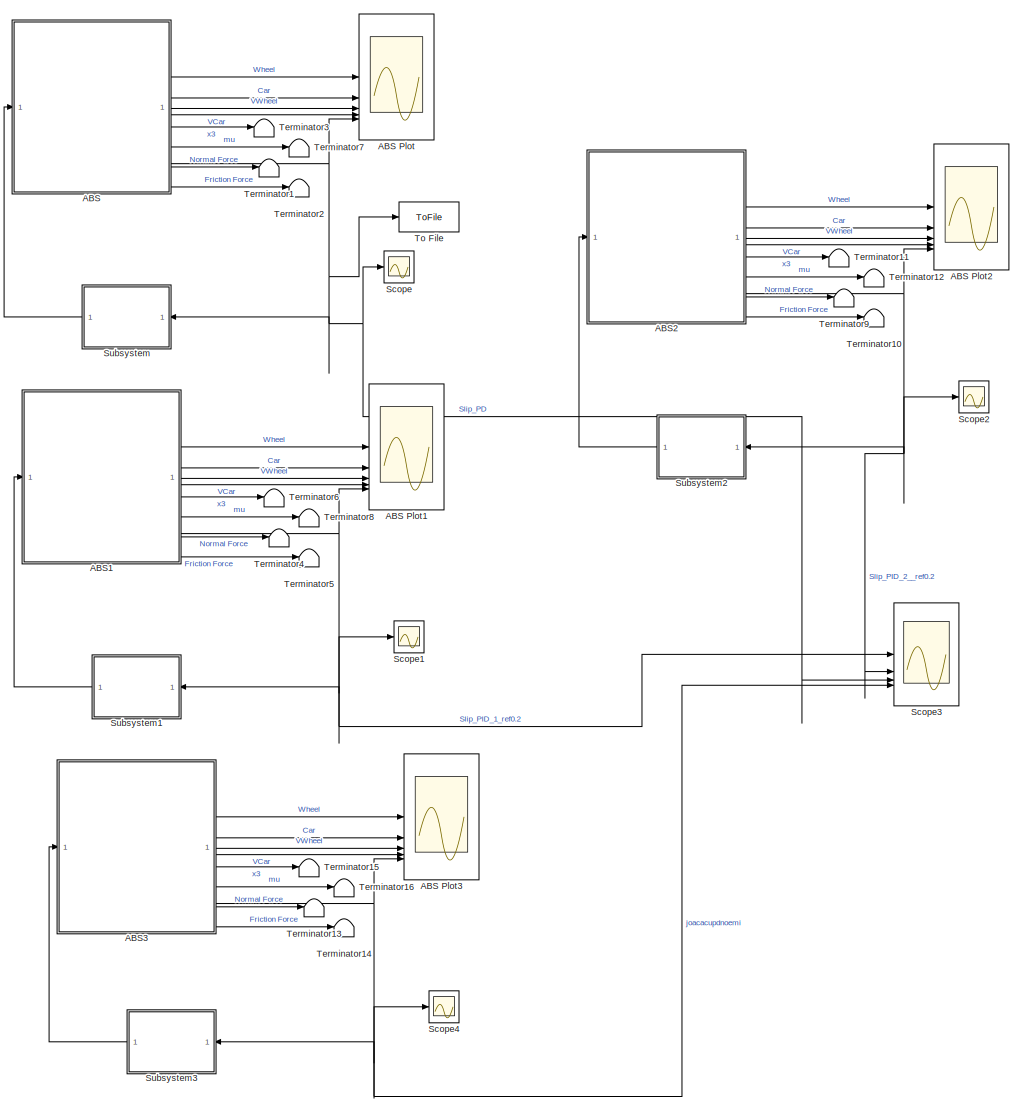
[diagram: root canvas - part 1/1, most of the canvas]
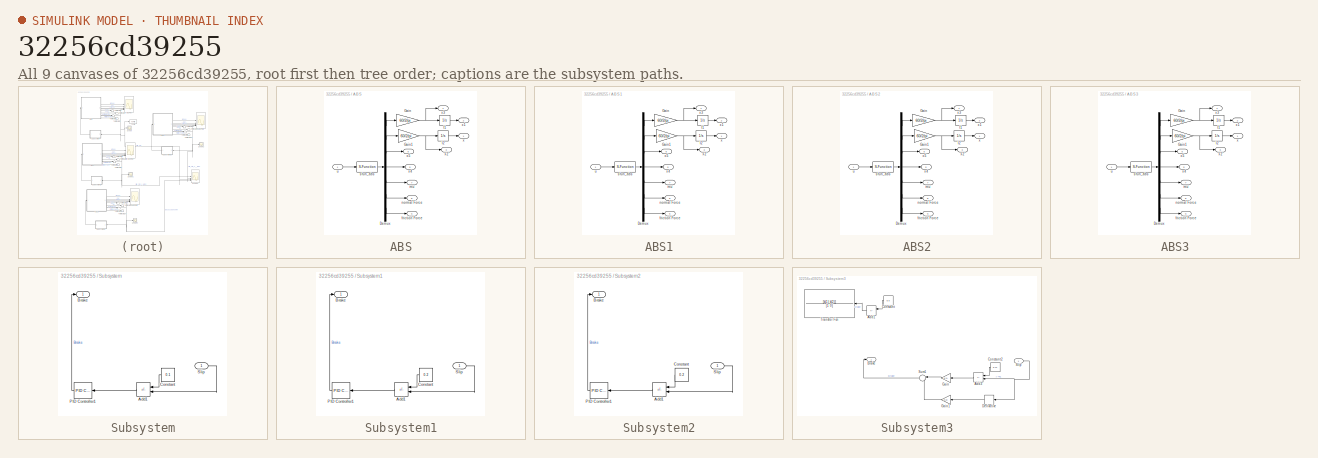
[diagram: thumbnail index - all 9 canvases of the model, root first then tree order]
MODEL slx_32256cd39255
KIND model
CONFIG AbsTol = auto
CONFIG EnableMultiTasking = off
CONFIG FixedStep = auto
CONFIG MaxStep = auto
CONFIG MinStep = auto
CONFIG RelTol = 1e-3
CONFIG SampleTimeConstraint = Unconstrained
CONFIG SolverName = VariableStepAuto
CONFIG StartTime = 0.0
CONFIG StopTime = 10
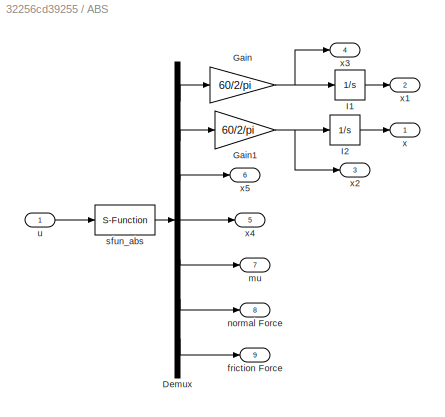
BLOCK [SubSystem] ABS
BLOCK [Scope] ABS Plot
  Floating = off
  NumInputPorts = 6
  ScopeSpecificationString = Simulink.scopes.TimeScopeBlockCfg('CurrentConfiguration', extmgr.ConfigurationSet(extmgr.Configuration('Core','General UI',true),extmgr.Configuration('Core','Source UI',true),extmgr.Configuration('Sources','WiredSimulink',true,'DataLogging',true,'DataLoggingVariableName','ABSHistory','DataLoggingSaveFormat','StructureWithTime','DataLoggingMaxPoints','6000','DataLoggingLimitDataPoints',true,'DataLo...<+3809ch>
BLOCK [Scope] ABS Plot1
  Floating = off
  NumInputPorts = 6
  ScopeSpecificationString = Simulink.scopes.TimeScopeBlockCfg('CurrentConfiguration', extmgr.ConfigurationSet(extmgr.Configuration('Core','General UI',true),extmgr.Configuration('Core','Source UI',true),extmgr.Configuration('Sources','WiredSimulink',true,'DataLogging',true,'DataLoggingVariableName','ScopeData1','DataLoggingSaveFormat','StructureWithTime','DataLoggingMaxPoints','6000','DataLoggingLimitDataPoints',true,'DataLo...<+3849ch>
BLOCK [Scope] ABS Plot2
  Floating = off
  NumInputPorts = 6
  ScopeSpecificationString = Simulink.scopes.TimeScopeBlockCfg('CurrentConfiguration', extmgr.ConfigurationSet(extmgr.Configuration('Core','General UI',true),extmgr.Configuration('Core','Source UI',true),extmgr.Configuration('Sources','WiredSimulink',true,'DataLogging',true,'DataLoggingVariableName','ScopeData3','DataLoggingSaveFormat','StructureWithTime','DataLoggingMaxPoints','6000','DataLoggingLimitDataPoints',true,'DataLo...<+3850ch>
BLOCK [Scope] ABS Plot3
  Floating = off
  NumInputPorts = 6
  ScopeSpecificationString = Simulink.scopes.TimeScopeBlockCfg('CurrentConfiguration', extmgr.ConfigurationSet(extmgr.Configuration('Core','General UI',true),extmgr.Configuration('Core','Source UI',true),extmgr.Configuration('Sources','WiredSimulink',true,'DataLogging',true,'DataLoggingVariableName','ScopeData6','DataLoggingSaveFormat','StructureWithTime','DataLoggingMaxPoints','6000','DataLoggingLimitDataPoints',true,'DataLo...<+3848ch>
BLOCK [Demux] ABS/Demux
  DisplayOption = none
  Outputs = 7
BLOCK [Gain] ABS/Gain
  Gain = 60/2/pi
  OutDataTypeStr = Inherit: Same as input
  ParamDataTypeStr = Inherit: Same as input
  SaturateOnIntegerOverflow = on
BLOCK [Gain] ABS/Gain1
  Gain = 60/2/pi
  OutDataTypeStr = Inherit: Same as input
  ParamDataTypeStr = Inherit: Same as input
  SaturateOnIntegerOverflow = on
BLOCK [Integrator] ABS/I1
BLOCK [Integrator] ABS/I2
BLOCK [Outport] ABS/friction Force
  Port = 9
BLOCK [Outport] ABS/mu
  Port = 7
BLOCK [Outport] ABS/normal Force
  Port = 8
BLOCK [S-Function] ABS/sfun_abs
  EnableBusSupport = off
  FunctionName = sabs
  Parameters = r1,r2,J1,J2,d1,d2,M10,M20,Mg,w,p,a,L,phi,u0,b1,b2,tau,xini
  SFcnIsStateOwnerBlock = off
  SFunctionDeploymentMode = off
BLOCK [Inport] ABS/u
BLOCK [Outport] ABS/x
BLOCK [Outport] ABS/x1
  Port = 2
BLOCK [Outport] ABS/x2
  Port = 3
BLOCK [Outport] ABS/x3
  Port = 4
BLOCK [Outport] ABS/x4
  Port = 5
BLOCK [Outport] ABS/x5
  Port = 6
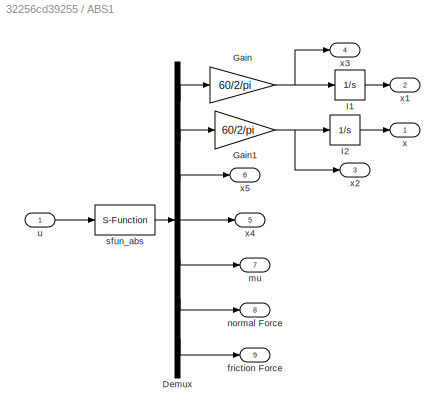
BLOCK [SubSystem] ABS1
BLOCK [Demux] ABS1/Demux
  DisplayOption = none
  Outputs = 7
BLOCK [Gain] ABS1/Gain
  Gain = 60/2/pi
  OutDataTypeStr = Inherit: Same as input
  ParamDataTypeStr = Inherit: Same as input
  SaturateOnIntegerOverflow = on
BLOCK [Gain] ABS1/Gain1
  Gain = 60/2/pi
  OutDataTypeStr = Inherit: Same as input
  ParamDataTypeStr = Inherit: Same as input
  SaturateOnIntegerOverflow = on
BLOCK [Integrator] ABS1/I1
BLOCK [Integrator] ABS1/I2
BLOCK [Outport] ABS1/friction Force
  Port = 9
BLOCK [Outport] ABS1/mu
  Port = 7
BLOCK [Outport] ABS1/normal Force
  Port = 8
BLOCK [S-Function] ABS1/sfun_abs
  EnableBusSupport = off
  FunctionName = sabs
  Parameters = r1,r2,J1,J2,d1,d2,M10,M20,Mg,w,p,a,L,phi,u0,b1,b2,tau,xini
  SFcnIsStateOwnerBlock = off
  SFunctionDeploymentMode = off
BLOCK [Inport] ABS1/u
BLOCK [Outport] ABS1/x
BLOCK [Outport] ABS1/x1
  Port = 2
BLOCK [Outport] ABS1/x2
  Port = 3
BLOCK [Outport] ABS1/x3
  Port = 4
BLOCK [Outport] ABS1/x4
  Port = 5
BLOCK [Outport] ABS1/x5
  Port = 6
BLOCK [SubSystem] ABS2
BLOCK [Demux] ABS2/Demux
  DisplayOption = none
  Outputs = 7
BLOCK [Gain] ABS2/Gain
  Gain = 60/2/pi
  OutDataTypeStr = Inherit: Same as input
  ParamDataTypeStr = Inherit: Same as input
  SaturateOnIntegerOverflow = on
BLOCK [Gain] ABS2/Gain1
  Gain = 60/2/pi
  OutDataTypeStr = Inherit: Same as input
  ParamDataTypeStr = Inherit: Same as input
  SaturateOnIntegerOverflow = on
BLOCK [Integrator] ABS2/I1
BLOCK [Integrator] ABS2/I2
BLOCK [Outport] ABS2/friction Force
  Port = 9
BLOCK [Outport] ABS2/mu
  Port = 7
BLOCK [Outport] ABS2/normal Force
  Port = 8
BLOCK [S-Function] ABS2/sfun_abs
  EnableBusSupport = off
  FunctionName = sabs
  Parameters = r1,r2,J1,J2,d1,d2,M10,M20,Mg,w,p,a,L,phi,u0,b1,b2,tau,xini
  SFcnIsStateOwnerBlock = off
  SFunctionDeploymentMode = off
BLOCK [Inport] ABS2/u
BLOCK [Outport] ABS2/x
BLOCK [Outport] ABS2/x1
  Port = 2
BLOCK [Outport] ABS2/x2
  Port = 3
BLOCK [Outport] ABS2/x3
  Port = 4
BLOCK [Outport] ABS2/x4
  Port = 5
BLOCK [Outport] ABS2/x5
  Port = 6
BLOCK [SubSystem] ABS3
BLOCK [Demux] ABS3/Demux
  DisplayOption = none
  Outputs = 7
BLOCK [Gain] ABS3/Gain
  Gain = 60/2/pi
  OutDataTypeStr = Inherit: Same as input
  ParamDataTypeStr = Inherit: Same as input
  SaturateOnIntegerOverflow = on
BLOCK [Gain] ABS3/Gain1
  Gain = 60/2/pi
  OutDataTypeStr = Inherit: Same as input
  ParamDataTypeStr = Inherit: Same as input
  SaturateOnIntegerOverflow = on
BLOCK [Integrator] ABS3/I1
BLOCK [Integrator] ABS3/I2
BLOCK [Outport] ABS3/friction Force
  Port = 9
BLOCK [Outport] ABS3/mu
  Port = 7
BLOCK [Outport] ABS3/normal Force
  Port = 8
BLOCK [S-Function] ABS3/sfun_abs
  EnableBusSupport = off
  FunctionName = sabs
  Parameters = r1,r2,J1,J2,d1,d2,M10,M20,Mg,w,p,a,L,phi,u0,b1,b2,tau,xini
  SFcnIsStateOwnerBlock = off
  SFunctionDeploymentMode = off
BLOCK [Inport] ABS3/u
BLOCK [Outport] ABS3/x
BLOCK [Outport] ABS3/x1
  Port = 2
BLOCK [Outport] ABS3/x2
  Port = 3
BLOCK [Outport] ABS3/x3
  Port = 4
BLOCK [Outport] ABS3/x4
  Port = 5
BLOCK [Outport] ABS3/x5
  Port = 6
BLOCK [Scope] Scope
  Floating = off
  NumInputPorts = 1
  ScopeSpecificationString = Simulink.scopes.TimeScopeBlockCfg('CurrentConfiguration', extmgr.ConfigurationSet(extmgr.Configuration('Core','General UI',true),extmgr.Configuration('Core','Source UI',true),extmgr.Configuration('Sources','WiredSimulink',true),extmgr.Configuration('Visuals','Time Domain',true,'SerializedDisplays',{struct('MinYLimReal','-0.12455','MaxYLimReal','1.12103','YLabelReal','','MinYLimMag','0.00000','MaxY...<+1407ch>
BLOCK [Scope] Scope1
  Floating = off
  NumInputPorts = 1
  ScopeSpecificationString = Simulink.scopes.TimeScopeBlockCfg('CurrentConfiguration', extmgr.ConfigurationSet(extmgr.Configuration('Core','General UI',true),extmgr.Configuration('Core','Source UI',true),extmgr.Configuration('Sources','WiredSimulink',true,'DataLoggingVariableName','ScopeData2'),extmgr.Configuration('Visuals','Time Domain',true,'SerializedDisplays',{struct('MinYLimReal','-0.12455','MaxYLimReal','1.12103','YLab...<+1456ch>
BLOCK [Scope] Scope2
  Floating = off
  NumInputPorts = 1
  ScopeSpecificationString = Simulink.scopes.TimeScopeBlockCfg('CurrentConfiguration', extmgr.ConfigurationSet(extmgr.Configuration('Core','General UI',true),extmgr.Configuration('Core','Source UI',true),extmgr.Configuration('Sources','WiredSimulink',true,'DataLoggingVariableName','ScopeData4'),extmgr.Configuration('Visuals','Time Domain',true,'SerializedDisplays',{struct('MinYLimReal','-0.12455','MaxYLimReal','1.12103','YLab...<+1443ch>
BLOCK [Scope] Scope3
  Floating = off
  NumInputPorts = 4
  ScopeSpecificationString = Simulink.scopes.TimeScopeBlockCfg('CurrentConfiguration', extmgr.ConfigurationSet(extmgr.Configuration('Core','General UI',true),extmgr.Configuration('Core','Source UI',true),extmgr.Configuration('Sources','WiredSimulink',true,'DataLoggingVariableName','ScopeData5'),extmgr.Configuration('Visuals','Time Domain',true,'SerializedDisplays',{struct('MinYLimReal','-0.125','MaxYLimReal','1.125','YLabelRe...<+1555ch>
BLOCK [Scope] Scope4
  Floating = off
  NumInputPorts = 1
  ScopeSpecificationString = Simulink.scopes.TimeScopeBlockCfg('CurrentConfiguration', extmgr.ConfigurationSet(extmgr.Configuration('Core','General UI',true),extmgr.Configuration('Core','Source UI',true),extmgr.Configuration('Sources','WiredSimulink',true,'DataLoggingVariableName','ScopeData7'),extmgr.Configuration('Visuals','Time Domain',true,'SerializedDisplays',{struct('MinYLimReal','-0.12455','MaxYLimReal','1.12103','YLab...<+1453ch>
BLOCK [SubSystem] Subsystem
  NameLocation = top
BLOCK [Sum] Subsystem/Add1
  IconShape = rectangular
  Inputs = +-
  NameLocation = top
BLOCK [Outport] Subsystem/Brake
BLOCK [Constant] Subsystem/Constant
  NameLocation = top
  Value = 0.1
BLOCK [Reference] Subsystem/PID Controller1  REF=slpidlib/PID Controller
  LibrarySourceBlock = simulink/Continuous/PID Controller
  NameLocation = top
  SourceBlock = slpidlib/PID Controller
  SourceType = PID 1dof
BLOCK [Inport] Subsystem/Slip
BLOCK [SubSystem] Subsystem1
  NameLocation = top
BLOCK [Sum] Subsystem1/Add1
  IconShape = rectangular
  Inputs = +-
  NameLocation = top
BLOCK [Outport] Subsystem1/Brake
BLOCK [Constant] Subsystem1/Constant
  NameLocation = top
  Value = 0.2
BLOCK [Reference] Subsystem1/PID Controller1  REF=slpidlib/PID Controller
  LibrarySourceBlock = simulink/Continuous/PID Controller
  NameLocation = top
  SourceBlock = slpidlib/PID Controller
  SourceType = PID 1dof
BLOCK [Inport] Subsystem1/Slip
BLOCK [SubSystem] Subsystem2
  NameLocation = top
BLOCK [Sum] Subsystem2/Add1
  IconShape = rectangular
  Inputs = +-
  NameLocation = top
BLOCK [Outport] Subsystem2/Brake
BLOCK [Constant] Subsystem2/Constant
  NameLocation = top
  Value = 0.2
BLOCK [Reference] Subsystem2/PID Controller1  REF=slpidlib/PID Controller
  LibrarySourceBlock = simulink/Continuous/PID Controller
  NameLocation = top
  SourceBlock = slpidlib/PID Controller
  SourceType = PID 1dof
BLOCK [Inport] Subsystem2/Slip
BLOCK [SubSystem] Subsystem3
  NameLocation = top
BLOCK [Sum] Subsystem3/Add1
  IconShape = rectangular
  Inputs = +-
  NameLocation = top
BLOCK [Sum] Subsystem3/Add3
  IconShape = rectangular
  Inputs = +-
  NameLocation = top
BLOCK [Outport] Subsystem3/Brake
BLOCK [Constant] Subsystem3/Constant
  NameLocation = top
  Value = 0.5
BLOCK [Constant] Subsystem3/Constant2
  NameLocation = top
  Value = 0.11
BLOCK [Derivative] Subsystem3/Derivative
  NameLocation = top
BLOCK [Gain] Subsystem3/Gain
  Gain = k(1)
  NameLocation = top
BLOCK [Gain] Subsystem3/Gain1
  Gain = k(2)
  NameLocation = top
BLOCK [Inport] Subsystem3/Slip
BLOCK [Sum] Subsystem3/Sum1
  Inputs = |+-
  NameLocation = top
BLOCK [TransferFcn] Subsystem3/Transfer Fcn
  Denominator = [1 0]
  NameLocation = top
  Numerator = [k(1) k(2)]
BLOCK [Terminator] Terminator1
BLOCK [Terminator] Terminator10
BLOCK [Terminator] Terminator11
BLOCK [Terminator] Terminator12
BLOCK [Terminator] Terminator13
BLOCK [Terminator] Terminator14
BLOCK [Terminator] Terminator15
BLOCK [Terminator] Terminator16
BLOCK [Terminator] Terminator2
BLOCK [Terminator] Terminator3
BLOCK [Terminator] Terminator4
BLOCK [Terminator] Terminator5
BLOCK [Terminator] Terminator6
BLOCK [Terminator] Terminator7
BLOCK [Terminator] Terminator8
BLOCK [Terminator] Terminator9
BLOCK [ToFile] To File
  Filename = slipdata.mat
LINE ABS/Demux:1 -> ABS/Gain:1
LINE ABS/Demux:2 -> ABS/Gain1:1
LINE ABS/Demux:3 -> ABS/x5:1
LINE ABS/Demux:4 -> ABS/x4:1
LINE ABS/Demux:5 -> ABS/mu:1
LINE ABS/Demux:6 -> ABS/normal Force:1
LINE ABS/Demux:7 -> ABS/friction Force:1
NET ABS/Gain1:1 -> ABS/I2:1, ABS/x2:1
NET ABS/Gain:1 -> ABS/I1:1, ABS/x3:1
LINE ABS/I1:1 -> ABS/x1:1
LINE ABS/I2:1 -> ABS/x:1
LINE ABS/sfun_abs:1 -> ABS/Demux:1
LINE ABS/u:1 -> ABS/sfun_abs:1
LINE ABS1/Demux:1 -> ABS1/Gain:1
LINE ABS1/Demux:2 -> ABS1/Gain1:1
LINE ABS1/Demux:3 -> ABS1/x5:1
LINE ABS1/Demux:4 -> ABS1/x4:1
LINE ABS1/Demux:5 -> ABS1/mu:1
LINE ABS1/Demux:6 -> ABS1/normal Force:1
LINE ABS1/Demux:7 -> ABS1/friction Force:1
NET ABS1/Gain1:1 -> ABS1/I2:1, ABS1/x2:1
NET ABS1/Gain:1 -> ABS1/I1:1, ABS1/x3:1
LINE ABS1/I1:1 -> ABS1/x1:1
LINE ABS1/I2:1 -> ABS1/x:1
LINE ABS1/sfun_abs:1 -> ABS1/Demux:1
LINE ABS1/u:1 -> ABS1/sfun_abs:1
LINE ABS1:1 -> ABS Plot1:1
LINE ABS1:2 -> ABS Plot1:2
LINE ABS1:3 -> ABS Plot1:3
LINE ABS1:4 -> ABS Plot1:4
NET ABS1:5 -> ABS Plot1:5, Scope1:1, Scope3:1, Subsystem1:1
LINE ABS1:6 -> Terminator6:1
LINE ABS1:7 -> Terminator8:1
LINE ABS1:8 -> Terminator4:1
LINE ABS1:9 -> Terminator5:1
LINE ABS2/Demux:1 -> ABS2/Gain:1
LINE ABS2/Demux:2 -> ABS2/Gain1:1
LINE ABS2/Demux:3 -> ABS2/x5:1
LINE ABS2/Demux:4 -> ABS2/x4:1
LINE ABS2/Demux:5 -> ABS2/mu:1
LINE ABS2/Demux:6 -> ABS2/normal Force:1
LINE ABS2/Demux:7 -> ABS2/friction Force:1
NET ABS2/Gain1:1 -> ABS2/I2:1, ABS2/x2:1
NET ABS2/Gain:1 -> ABS2/I1:1, ABS2/x3:1
LINE ABS2/I1:1 -> ABS2/x1:1
LINE ABS2/I2:1 -> ABS2/x:1
LINE ABS2/sfun_abs:1 -> ABS2/Demux:1
LINE ABS2/u:1 -> ABS2/sfun_abs:1
LINE ABS2:1 -> ABS Plot2:1
LINE ABS2:2 -> ABS Plot2:2
LINE ABS2:3 -> ABS Plot2:3
LINE ABS2:4 -> ABS Plot2:4
NET ABS2:5 -> ABS Plot2:5, Scope2:1, Scope3:2, Subsystem2:1
LINE ABS2:6 -> Terminator11:1
LINE ABS2:7 -> Terminator12:1
LINE ABS2:8 -> Terminator9:1
LINE ABS2:9 -> Terminator10:1
LINE ABS3/Demux:1 -> ABS3/Gain:1
LINE ABS3/Demux:2 -> ABS3/Gain1:1
LINE ABS3/Demux:3 -> ABS3/x5:1
LINE ABS3/Demux:4 -> ABS3/x4:1
LINE ABS3/Demux:5 -> ABS3/mu:1
LINE ABS3/Demux:6 -> ABS3/normal Force:1
LINE ABS3/Demux:7 -> ABS3/friction Force:1
NET ABS3/Gain1:1 -> ABS3/I2:1, ABS3/x2:1
NET ABS3/Gain:1 -> ABS3/I1:1, ABS3/x3:1
LINE ABS3/I1:1 -> ABS3/x1:1
LINE ABS3/I2:1 -> ABS3/x:1
LINE ABS3/sfun_abs:1 -> ABS3/Demux:1
LINE ABS3/u:1 -> ABS3/sfun_abs:1
LINE ABS3:1 -> ABS Plot3:1
LINE ABS3:2 -> ABS Plot3:2
LINE ABS3:3 -> ABS Plot3:3
LINE ABS3:4 -> ABS Plot3:4
NET ABS3:5 -> ABS Plot3:5, Scope3:4, Scope4:1, Subsystem3:1
LINE ABS3:6 -> Terminator15:1
LINE ABS3:7 -> Terminator16:1
LINE ABS3:8 -> Terminator13:1
LINE ABS3:9 -> Terminator14:1
LINE ABS:1 -> ABS Plot:1
LINE ABS:2 -> ABS Plot:2
LINE ABS:3 -> ABS Plot:3
LINE ABS:4 -> ABS Plot:4
NET ABS:5 -> ABS Plot:5, Scope3:3, Scope:1, Subsystem:1, To File:1
LINE ABS:6 -> Terminator3:1
LINE ABS:7 -> Terminator7:1
LINE ABS:8 -> Terminator1:1
LINE ABS:9 -> Terminator2:1
LINE Subsystem/Add1:1 -> Subsystem/PID Controller1:1
LINE Subsystem/Constant:1 -> Subsystem/Add1:1
LINE Subsystem/PID Controller1:1 -> Subsystem/Brake:1
LINE Subsystem/Slip:1 -> Subsystem/Add1:2
LINE Subsystem1/Add1:1 -> Subsystem1/PID Controller1:1
LINE Subsystem1/Constant:1 -> Subsystem1/Add1:1
LINE Subsystem1/PID Controller1:1 -> Subsystem1/Brake:1
LINE Subsystem1/Slip:1 -> Subsystem1/Add1:2
LINE Subsystem1:1 -> ABS1:1
LINE Subsystem2/Add1:1 -> Subsystem2/PID Controller1:1
LINE Subsystem2/Constant:1 -> Subsystem2/Add1:1
LINE Subsystem2/PID Controller1:1 -> Subsystem2/Brake:1
LINE Subsystem2/Slip:1 -> Subsystem2/Add1:2
LINE Subsystem2:1 -> ABS2:1
LINE Subsystem3/Add1:1 -> Subsystem3/Transfer Fcn:1
LINE Subsystem3/Add3:1 -> Subsystem3/Gain:1
LINE Subsystem3/Constant2:1 -> Subsystem3/Add3:1
LINE Subsystem3/Constant:1 -> Subsystem3/Add1:1
LINE Subsystem3/Derivative:1 -> Subsystem3/Gain1:1
LINE Subsystem3/Gain1:1 -> Subsystem3/Sum1:2
LINE Subsystem3/Gain:1 -> Subsystem3/Sum1:1
NET Subsystem3/Slip:1 -> Subsystem3/Add3:2, Subsystem3/Derivative:1
LINE Subsystem3/Sum1:1 -> Subsystem3/Brake:1
LINE Subsystem3:1 -> ABS3:1
LINE Subsystem:1 -> ABS:1
note: NET lines group one-source signal fan-out (src -> all destinations, sorted); 1:1 wires keep LINE
